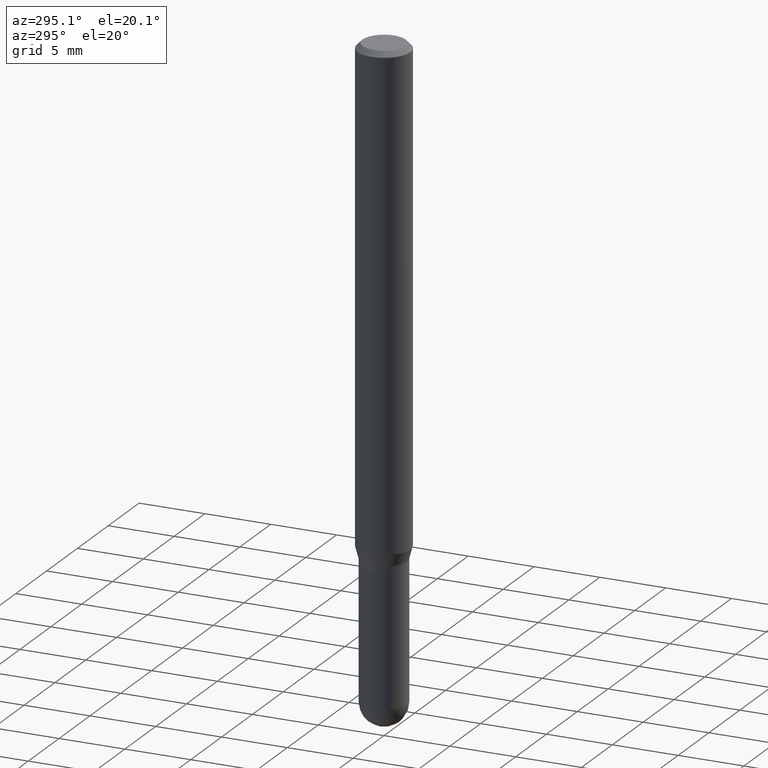
[diagram: clean part render]
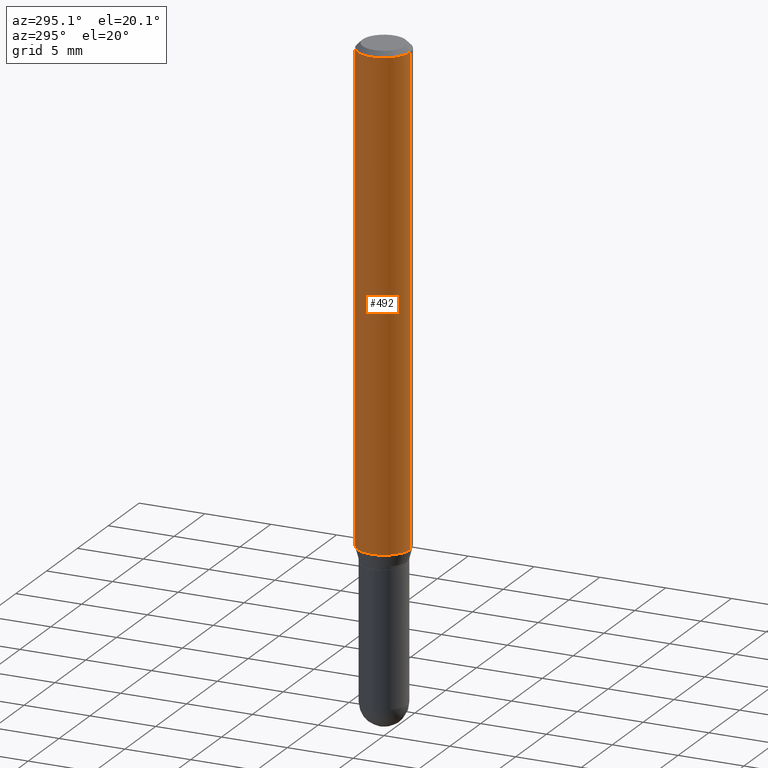
[diagram: same view with one face highlighted and labeled with its STEP entity id]
A machine part, auxiliary view. The second image highlights one B-rep face of the part: STEP entity #492.
In plain terms, the highlighted cylindrical surface (edge-blend (fillet) strip) has radius 2.0002 mm, axis along (-0, 0, 1).
Its self-contained STEP definition (entity closure, byte-faithful):
#8 = EDGE_CURVE ( 'NONE', #423, #178, #62, .T. ) ;
#10 = AXIS2_PLACEMENT_3D ( 'NONE', #34, #184, #345 ) ;
#16 = EDGE_CURVE ( 'NONE', #111, #494, #409, .T. ) ;
#17 = CARTESIAN_POINT ( 'NONE',  ( 5.595524044111143991E-16, 0.07874999999999994504, -0.01500000000000017292 ) ) ;
#22 = FACE_OUTER_BOUND ( 'NONE', #336, .T. ) ;
#26 = DIRECTION ( 'NONE',  ( -6.982962677686265922E-15, -1.000000000000000000, 3.490451784294271449E-15 ) ) ;
#33 = EDGE_CURVE ( 'NONE', #494, #178, #132, .T. ) ;
#34 = CARTESIAN_POINT ( 'NONE',  ( 3.669281610426094328E-31, -5.235677676441372167E-17, -0.01499999999999989710 ) ) ;
#60 = ORIENTED_EDGE ( 'NONE', *, *, #128, .T. ) ;
#62 = LINE ( 'NONE', #341, #302 ) ;
#69 = DIRECTION ( 'NONE',  ( -2.446187740284079012E-29, 3.490451784294271449E-15, 1.000000000000000000 ) ) ;
#103 = ORIENTED_EDGE ( 'NONE', *, *, #8, .T. ) ;
#111 = VERTEX_POINT ( 'NONE', #359 ) ;
#128 = EDGE_CURVE ( 'NONE', #111, #423, #334, .T. ) ;
#132 = CIRCLE ( 'NONE', #10, 0.07875000000000000056 ) ;
#148 = CARTESIAN_POINT ( 'NONE',  ( 5.595524044110786045E-16, 0.07874999999999997280, -2.748730780131737952E-16 ) ) ;
#161 = CARTESIAN_POINT ( 'NONE',  ( -5.499083108677930499E-16, -0.07875000000000004219, -0.01499999999999962301 ) ) ;
#162 = AXIS2_PLACEMENT_3D ( 'NONE', #200, #357, #400 ) ;
#178 = VERTEX_POINT ( 'NONE', #161 ) ;
#184 = DIRECTION ( 'NONE',  ( -2.446187740284079292E-29, 3.490451784294271843E-15, 1.000000000000000000 ) ) ;
#200 = CARTESIAN_POINT ( 'NONE',  ( 3.545356026059983484E-29, -5.058848944146210267E-15, -1.449339299545445714 ) ) ;
#214 = DIRECTION ( 'NONE',  ( -2.446187740284079012E-29, 3.490451784294271449E-15, 1.000000000000000000 ) ) ;
#260 = CARTESIAN_POINT ( 'NONE',  ( -5.499083108677578469E-16, -0.07875000000000501044, -1.449339299545445270 ) ) ;
#296 = ORIENTED_EDGE ( 'NONE', *, *, #33, .F. ) ;
#302 = VECTOR ( 'NONE', #69, 39.37007874015748143 ) ;
#328 = VECTOR ( 'NONE', #214, 39.37007874015748143 ) ;
#334 = CIRCLE ( 'NONE', #162, 0.07874999999999997280 ) ;
#336 = EDGE_LOOP ( 'NONE', ( #402, #60, #103, #296 ) ) ;
#341 = CARTESIAN_POINT ( 'NONE',  ( -5.499083108677932471E-16, -0.07874999999999997280, 2.748730780131737952E-16 ) ) ;
#345 = DIRECTION ( 'NONE',  ( -6.982962677686264344E-15, -1.000000000000000000, 3.496114991891765576E-15 ) ) ;
#357 = DIRECTION ( 'NONE',  ( -2.446187740284079292E-29, 3.490451784294271843E-15, 1.000000000000000000 ) ) ;
#359 = CARTESIAN_POINT ( 'NONE',  ( 5.595524044111142018E-16, 0.07874999999999494904, -1.449339299545445936 ) ) ;
#364 = CARTESIAN_POINT ( 'NONE',  ( 0.000000000000000000, 0.000000000000000000, 0.000000000000000000 ) ) ;
#373 = DIRECTION ( 'NONE',  ( -2.446187740284079292E-29, 3.490451784294271843E-15, 1.000000000000000000 ) ) ;
#400 = DIRECTION ( 'NONE',  ( -6.982962677686265922E-15, -1.000000000000000000, 3.469013325287954477E-15 ) ) ;
#402 = ORIENTED_EDGE ( 'NONE', *, *, #16, .F. ) ;
#409 = LINE ( 'NONE', #148, #328 ) ;
#423 = VERTEX_POINT ( 'NONE', #260 ) ;
#454 = AXIS2_PLACEMENT_3D ( 'NONE', #364, #373, #26 ) ;
#491 = CYLINDRICAL_SURFACE ( 'NONE', #454, 0.07874999999999997280 ) ;
#492 = ADVANCED_FACE ( 'NONE', ( #22 ), #491, .T. ) ;
#494 = VERTEX_POINT ( 'NONE', #17 ) ;